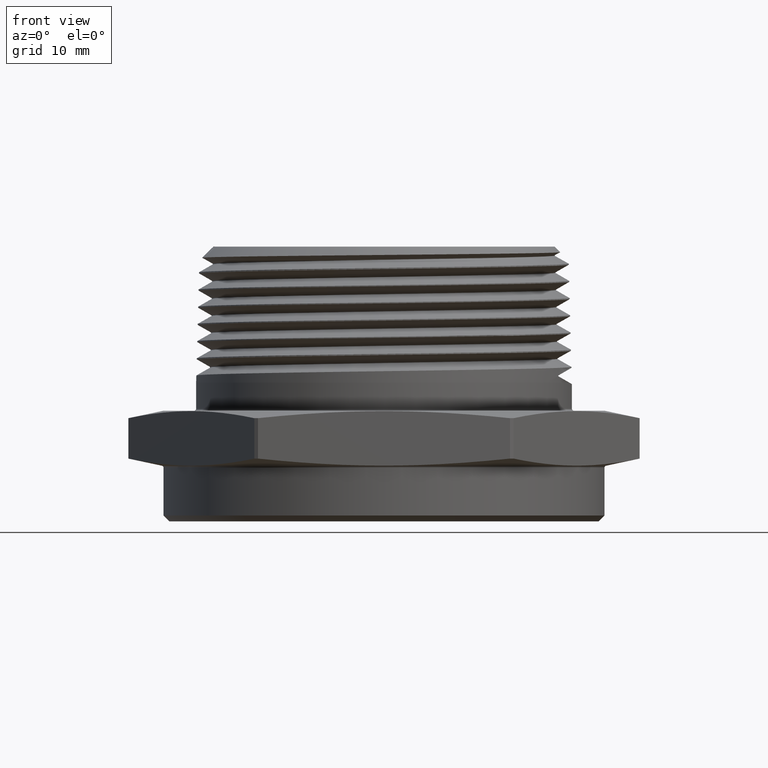
[diagram: clean part render]
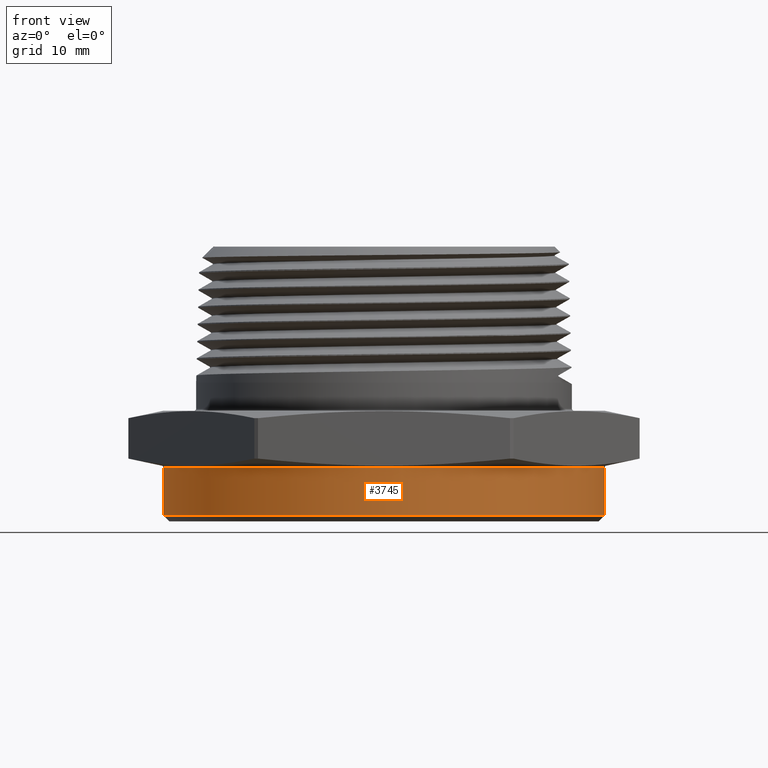
[diagram: same view with one face highlighted and labeled with its STEP entity id]
A machine part, front view. The second image highlights one B-rep face of the part: STEP entity #3745.
In plain terms, the highlighted cylindrical surface (partial cylindrical patch) has radius 28.321 mm, axis along (0, 0, 1).
Its self-contained STEP definition (entity closure, byte-faithful):
#100 = CARTESIAN_POINT ( 'NONE',  ( 1.115000000000000200, 0.0000000000000000000, -0.2500000000000002200 ) ) ;
#1537 = CARTESIAN_POINT ( 'NONE',  ( 1.115000000000000200, 0.0000000000000000000, -0.008097840331950474300 ) ) ;
#1539 = CARTESIAN_POINT ( 'NONE',  ( -1.115000000000000200, 1.365481181049298900E-016, -0.2500000000000002200 ) ) ;
#1900 = DIRECTION ( 'NONE',  ( -0.0000000000000000000, -0.0000000000000000000, 1.000000000000000000 ) ) ;
#1901 = DIRECTION ( 'NONE',  ( 1.000000000000000000, 0.0000000000000000000, 0.0000000000000000000 ) ) ;
#1904 = CARTESIAN_POINT ( 'NONE',  ( 0.0000000000000000000, 0.0000000000000000000, -0.2800000000000000300 ) ) ;
#1975 = CARTESIAN_POINT ( 'NONE',  ( 0.0000000000000000000, 0.0000000000000000000, -0.008097840331950403200 ) ) ;
#1976 = DIRECTION ( 'NONE',  ( -6.274932739761922300E-017, -0.0000000000000000000, -1.000000000000000000 ) ) ;
#1977 = DIRECTION ( 'NONE',  ( -1.000000000000000000, 0.0000000000000000000, 6.316632832884014900E-017 ) ) ;
#1978 = CARTESIAN_POINT ( 'NONE',  ( 1.115000000000000200, 0.0000000000000000000, -0.2800000000000000300 ) ) ;
#1982 = DIRECTION ( 'NONE',  ( -0.0000000000000000000, -0.0000000000000000000, 1.000000000000000000 ) ) ;
#1986 = DIRECTION ( 'NONE',  ( -0.0000000000000000000, -0.0000000000000000000, 1.000000000000000000 ) ) ;
#1987 = CARTESIAN_POINT ( 'NONE',  ( -1.115000000000000200, 1.365481181049298900E-016, -0.2800000000000000300 ) ) ;
#2787 = VERTEX_POINT ( 'NONE', #100 ) ;
#2836 = VERTEX_POINT ( 'NONE', #6143 ) ;
#2867 = VERTEX_POINT ( 'NONE', #1537 ) ;
#2869 = VERTEX_POINT ( 'NONE', #1539 ) ;
#3136 = EDGE_LOOP ( 'NONE', ( #7545, #7561, #7560, #7548 ) ) ;
#3241 = FACE_OUTER_BOUND ( 'NONE', #3136, .T. ) ;
#3244 = CYLINDRICAL_SURFACE ( 'NONE', #4667, 1.115000000000000200 ) ;
#3261 = CIRCLE ( 'NONE', #4678, 1.115000000000000200 ) ;
#3264 = LINE ( 'NONE', #1987, #3268 ) ;
#3268 = VECTOR ( 'NONE', #1982, 39.37007874015748100 ) ;
#3269 = LINE ( 'NONE', #1978, #3271 ) ;
#3271 = VECTOR ( 'NONE', #1986, 39.37007874015748100 ) ;
#3745 = ADVANCED_FACE ( 'NONE', ( #3241 ), #3244, .T. ) ;
#3920 = CARTESIAN_POINT ( 'NONE',  ( 0.0000000000000000000, 0.0000000000000000000, -0.2500000000000002200 ) ) ;
#3921 = DIRECTION ( 'NONE',  ( 0.0000000000000000000, 0.0000000000000000000, 1.000000000000000000 ) ) ;
#3922 = DIRECTION ( 'NONE',  ( -1.000000000000000000, 0.0000000000000000000, 0.0000000000000000000 ) ) ;
#4667 = AXIS2_PLACEMENT_3D ( 'NONE', #1904, #1900, #1901 ) ;
#4678 = AXIS2_PLACEMENT_3D ( 'NONE', #1975, #1976, #1977 ) ;
#5289 = EDGE_CURVE ( 'NONE', #2867, #2836, #3261, .T. ) ;
#5293 = EDGE_CURVE ( 'NONE', #2869, #2836, #3264, .T. ) ;
#5295 = EDGE_CURVE ( 'NONE', #2787, #2867, #3269, .T. ) ;
#5404 = EDGE_CURVE ( 'NONE', #2869, #2787, #7576, .T. ) ;
#6143 = CARTESIAN_POINT ( 'NONE',  ( -1.115000000000000200, 1.365481181049298900E-016, -0.008097840331950332100 ) ) ;
#6535 = AXIS2_PLACEMENT_3D ( 'NONE', #3920, #3921, #3922 ) ;
#7545 = ORIENTED_EDGE ( 'NONE', *, *, #5293, .F. ) ;
#7548 = ORIENTED_EDGE ( 'NONE', *, *, #5289, .T. ) ;
#7560 = ORIENTED_EDGE ( 'NONE', *, *, #5295, .T. ) ;
#7561 = ORIENTED_EDGE ( 'NONE', *, *, #5404, .T. ) ;
#7576 = CIRCLE ( 'NONE', #6535, 1.115000000000000200 ) ;